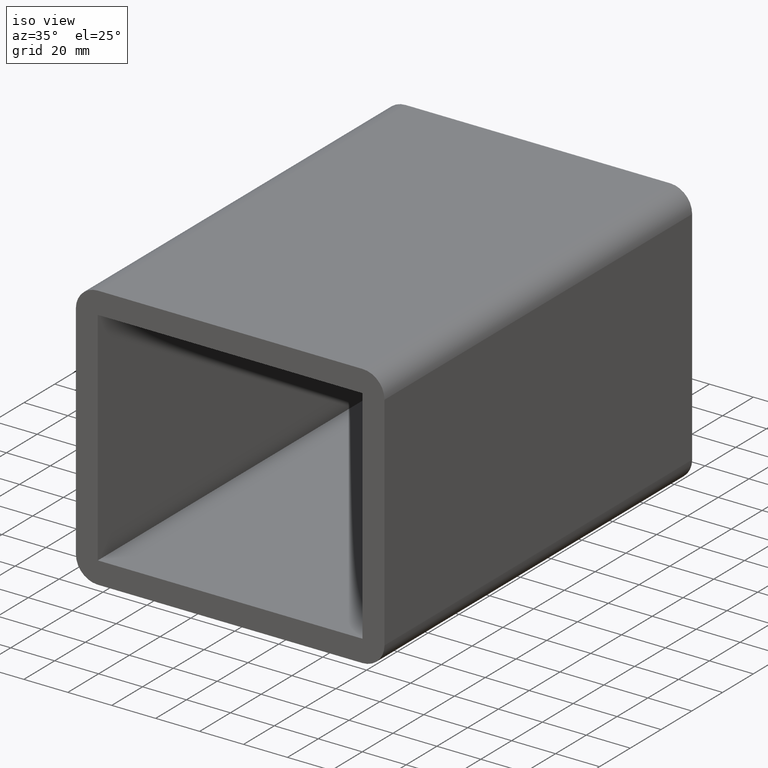
[diagram: clean part render]
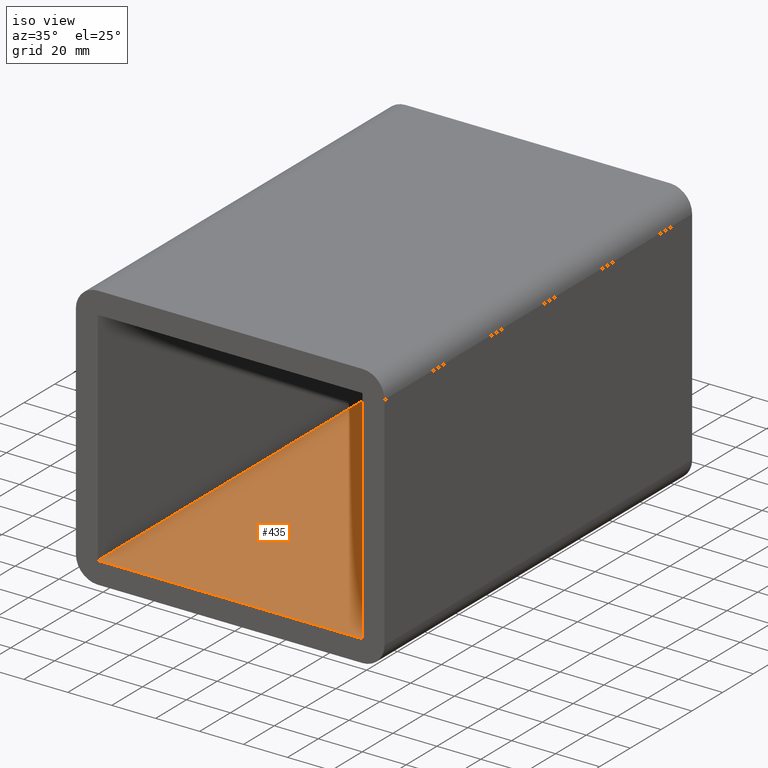
[diagram: same view with one face highlighted and labeled with its STEP entity id]
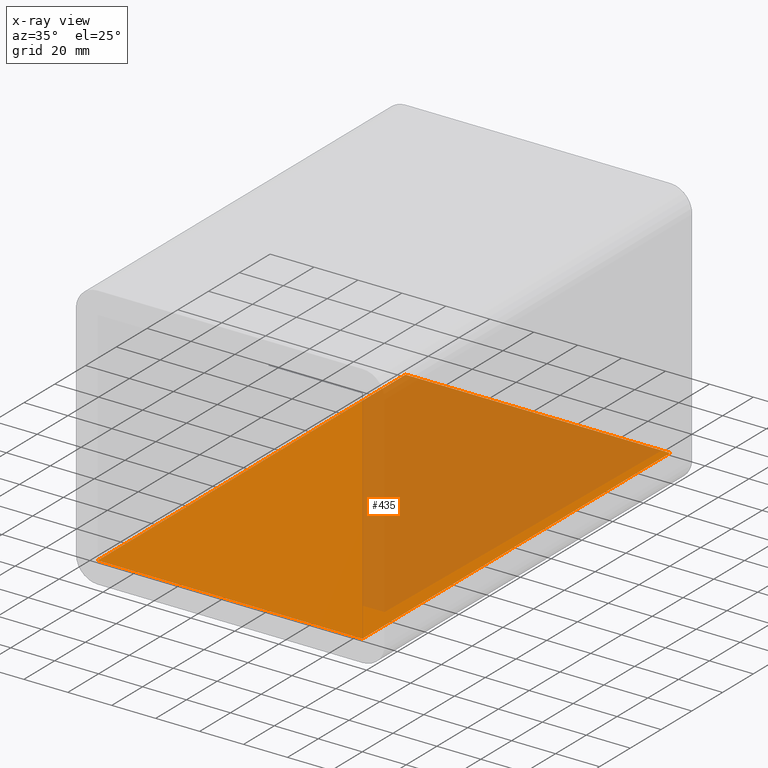
[diagram: x-ray of the same camera — body ghosted, the highlighted face saturated]
A machine part, iso view. The second image highlights one B-rep face of the part: STEP entity #435.
The next image is the same camera in x-ray: the body ghosted, the highlighted face saturated — about 52% of this face is hidden behind the body in this view.
In plain terms, the highlighted planar face has unit normal (0, 0, -1).
Its self-contained STEP definition (entity closure, byte-faithful):
#177=CARTESIAN_POINT('',(60.25,-3.0,-50.500000000000014));
#178=VERTEX_POINT('',#177);
#185=CARTESIAN_POINT('',(-60.25,-3.0,-50.500000000000014));
#186=VERTEX_POINT('',#185);
#187=CARTESIAN_POINT('',(60.25,-3.0,-50.500000000000014));
#188=DIRECTION('',(-1.0,0.0,0.0));
#189=VECTOR('',#188,120.5);
#190=LINE('',#187,#189);
#191=EDGE_CURVE('',#178,#186,#190,.T.);
#345=CARTESIAN_POINT('',(60.25,197.0,-50.500000000000014));
#346=VERTEX_POINT('',#345);
#347=CARTESIAN_POINT('',(60.25,197.0,-50.500000000000014));
#348=DIRECTION('',(0.0,-1.0,0.0));
#349=VECTOR('',#348,200.0);
#350=LINE('',#347,#349);
#351=EDGE_CURVE('',#346,#178,#350,.T.);
#402=CARTESIAN_POINT('',(-60.25,197.0,-50.500000000000014));
#403=VERTEX_POINT('',#402);
#404=CARTESIAN_POINT('',(-60.250000000000014,-3.0,-50.500000000000014));
#405=DIRECTION('',(0.0,1.0,0.0));
#406=VECTOR('',#405,200.0);
#407=LINE('',#404,#406);
#408=EDGE_CURVE('',#186,#403,#407,.T.);
#419=CARTESIAN_POINT('',(60.25,0.0,-50.500000000000014));
#420=DIRECTION('',(0.0,0.0,-1.0));
#421=DIRECTION('',(-1.0,0.0,0.0));
#422=AXIS2_PLACEMENT_3D('',#419,#420,#421);
#423=PLANE('',#422);
#424=ORIENTED_EDGE('',*,*,#408,.F.);
#425=ORIENTED_EDGE('',*,*,#191,.F.);
#426=ORIENTED_EDGE('',*,*,#351,.F.);
#427=CARTESIAN_POINT('',(-60.25,197.0,-50.500000000000014));
#428=DIRECTION('',(1.0,0.0,0.0));
#429=VECTOR('',#428,120.5);
#430=LINE('',#427,#429);
#431=EDGE_CURVE('',#403,#346,#430,.T.);
#432=ORIENTED_EDGE('',*,*,#431,.F.);
#433=EDGE_LOOP('',(#424,#425,#426,#432));
#434=FACE_OUTER_BOUND('',#433,.T.);
#435=ADVANCED_FACE('',(#434),#423,.F.);